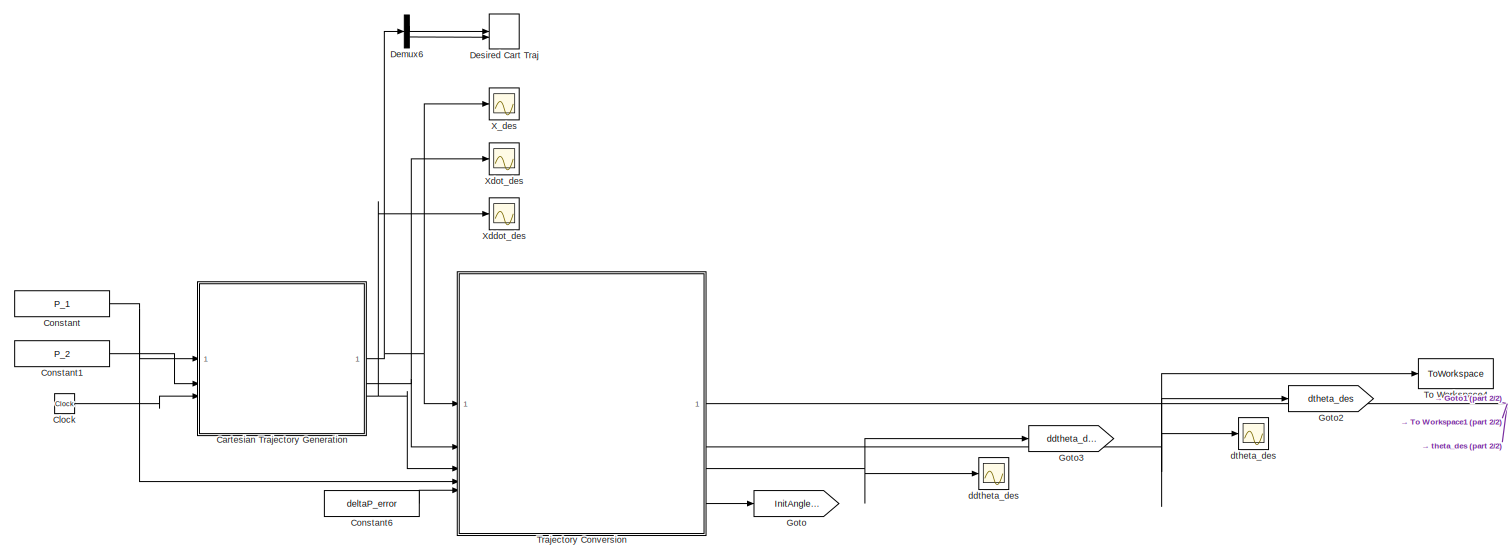
[diagram: root canvas - part 1/2, left side, full height]
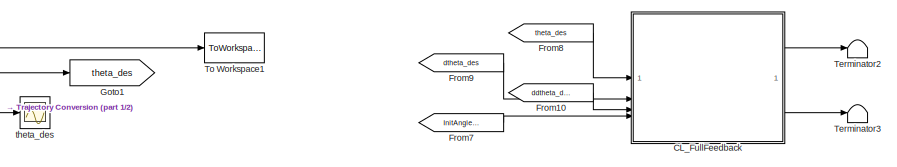
[diagram: root canvas - part 2/2, middle right region]
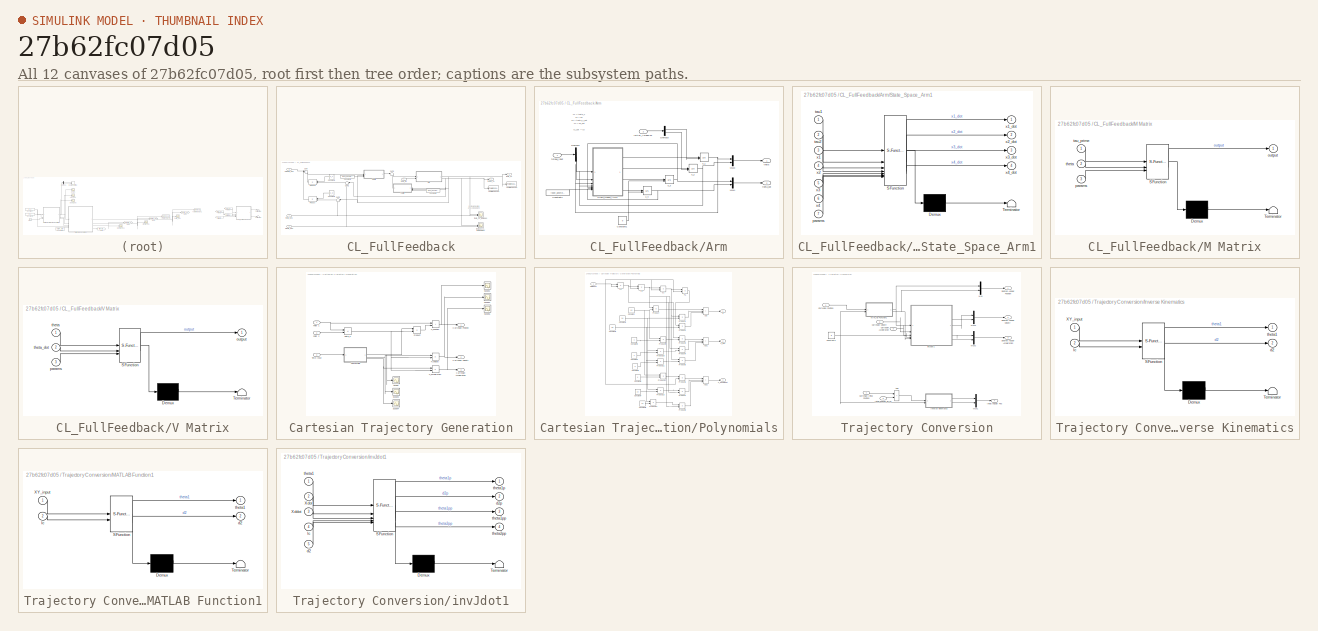
[diagram: thumbnail index - all 12 canvases of the model, root first then tree order]
MODEL slx_27b62fc07d05
KIND model
CONFIG AbsTol = auto
CONFIG EnableMultiTasking = off
CONFIG FixedStep = auto
CONFIG MaxStep = auto
CONFIG MinStep = auto
CONFIG RelTol = 1e-3
CONFIG SampleTimeConstraint = Unconstrained
CONFIG SolverName = ode45
CONFIG StartTime = 0.0
CONFIG StopTime = t_f
BLOCK [SubSystem] CL_FullFeedback
BLOCK [SubSystem] CL_FullFeedback/Arm
BLOCK [Constant] CL_FullFeedback/Arm/Constant1
  Value = 0
BLOCK [Constant] CL_FullFeedback/Arm/Constant2
  Value = robot_geometry
BLOCK [Demux] CL_FullFeedback/Arm/Demux2
  Outputs = 2
BLOCK [Demux] CL_FullFeedback/Arm/Demux3
  Outputs = 2
BLOCK [Mux] CL_FullFeedback/Arm/Mux3
  DisplayOption = bar
  Inputs = 2
BLOCK [Mux] CL_FullFeedback/Arm/Mux4
  DisplayOption = bar
  Inputs = 2
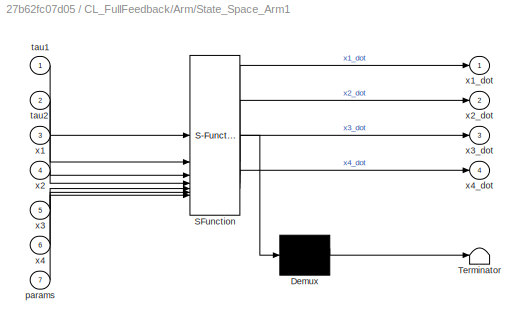
BLOCK [SubSystem] CL_FullFeedback/Arm/State_Space_Arm1
  ErrorFcn = Stateflow.Translate.translate
  PermitHierarchicalResolution = ExplicitOnly
  SFBlockType = MATLAB Function
  TreatAsAtomicUnit = on
BLOCK [Demux] CL_FullFeedback/Arm/State_Space_Arm1/ Demux 
  Outputs = 1
BLOCK [S-Function] CL_FullFeedback/Arm/State_Space_Arm1/ SFunction 
  EnableBusSupport = on
  FunctionName = sf_sfun
  PortCounts = [7 5]
  SFcnIsStateOwnerBlock = off
  SFunctionDeploymentMode = off
  Tag = Stateflow S-Function 4
BLOCK [Terminator] CL_FullFeedback/Arm/State_Space_Arm1/ Terminator 
BLOCK [Inport] CL_FullFeedback/Arm/State_Space_Arm1/params
  Port = 7
BLOCK [Inport] CL_FullFeedback/Arm/State_Space_Arm1/tau1
BLOCK [Inport] CL_FullFeedback/Arm/State_Space_Arm1/tau2
  Port = 2
BLOCK [Inport] CL_FullFeedback/Arm/State_Space_Arm1/x1
  Port = 3
BLOCK [Outport] CL_FullFeedback/Arm/State_Space_Arm1/x1_dot
BLOCK [Inport] CL_FullFeedback/Arm/State_Space_Arm1/x2
  Port = 4
BLOCK [Outport] CL_FullFeedback/Arm/State_Space_Arm1/x2_dot
  Port = 2
BLOCK [Inport] CL_FullFeedback/Arm/State_Space_Arm1/x3
  Port = 5
BLOCK [Outport] CL_FullFeedback/Arm/State_Space_Arm1/x3_dot
  Port = 3
BLOCK [Inport] CL_FullFeedback/Arm/State_Space_Arm1/x4
  Port = 6
BLOCK [Outport] CL_FullFeedback/Arm/State_Space_Arm1/x4_dot
  Port = 4
BLOCK [Inport] CL_FullFeedback/Arm/initial_AnlgePos
  Port = 2
  PortDimensions = [2 1]
BLOCK [Outport] CL_FullFeedback/Arm/theta
  PortDimensions = [2 1]
BLOCK [Outport] CL_FullFeedback/Arm/theta_dot
  Port = 2
  PortDimensions = [2 1]
BLOCK [Inport] CL_FullFeedback/Arm/torque_input
  PortDimensions = [2 1]
BLOCK [Integrator] CL_FullFeedback/Arm/x_1
  InitialConditionSource = external
BLOCK [Integrator] CL_FullFeedback/Arm/x_2
  InitialConditionSource = external
BLOCK [Integrator] CL_FullFeedback/Arm/x_3
  InitialConditionSource = external
BLOCK [Integrator] CL_FullFeedback/Arm/x_4
  InitialConditionSource = external
BLOCK [Constant] CL_FullFeedback/Constant2
  Value = k_p
BLOCK [Constant] CL_FullFeedback/Constant3
  Value = k_v
BLOCK [Constant] CL_FullFeedback/Constant5
  Value = robot_geometry
BLOCK [Constant] CL_FullFeedback/Constant6
  Value = robot_geometry
BLOCK [SubSystem] CL_FullFeedback/M Matrix
  ErrorFcn = Stateflow.Translate.translate
  PermitHierarchicalResolution = ExplicitOnly
  SFBlockType = MATLAB Function
  TreatAsAtomicUnit = on
BLOCK [Demux] CL_FullFeedback/M Matrix/ Demux 
  Outputs = 1
BLOCK [S-Function] CL_FullFeedback/M Matrix/ SFunction 
  EnableBusSupport = on
  FunctionName = sf_sfun
  PortCounts = [3 2]
  SFcnIsStateOwnerBlock = off
  SFunctionDeploymentMode = off
  Tag = Stateflow S-Function 9
BLOCK [Terminator] CL_FullFeedback/M Matrix/ Terminator 
BLOCK [Outport] CL_FullFeedback/M Matrix/output
BLOCK [Inport] CL_FullFeedback/M Matrix/params
  Port = 3
BLOCK [Inport] CL_FullFeedback/M Matrix/tau_prime
BLOCK [Inport] CL_FullFeedback/M Matrix/theta
  Port = 2
BLOCK [Product] CL_FullFeedback/Product
  Multiplication = Matrix(*)
BLOCK [Product] CL_FullFeedback/Product1
  Multiplication = Matrix(*)
BLOCK [Sum] CL_FullFeedback/Sum
  Inputs = |+++
BLOCK [Sum] CL_FullFeedback/Sum1
  Inputs = |-+
BLOCK [Sum] CL_FullFeedback/Sum2
  Inputs = |-+
BLOCK [Sum] CL_FullFeedback/Sum3
  InputSameDT = on
  Inputs = |++
BLOCK [ToWorkspace] CL_FullFeedback/To Workspace2
  FixptAsFi = on
  MaxDataPoints = inf
  SampleTime = -1
  SaveFormat = Timeseries
  VariableName = thetaCL
BLOCK [ToWorkspace] CL_FullFeedback/To Workspace3
  FixptAsFi = on
  MaxDataPoints = inf
  SampleTime = -1
  SaveFormat = Timeseries
  VariableName = theta_dotCL
BLOCK [SubSystem] CL_FullFeedback/V Matrix
  ErrorFcn = Stateflow.Translate.translate
  PermitHierarchicalResolution = ExplicitOnly
  SFBlockType = MATLAB Function
  TreatAsAtomicUnit = on
BLOCK [Demux] CL_FullFeedback/V Matrix/ Demux 
  Outputs = 1
BLOCK [S-Function] CL_FullFeedback/V Matrix/ SFunction 
  EnableBusSupport = on
  FunctionName = sf_sfun
  PortCounts = [3 2]
  SFcnIsStateOwnerBlock = off
  SFunctionDeploymentMode = off
  Tag = Stateflow S-Function 10
BLOCK [Terminator] CL_FullFeedback/V Matrix/ Terminator 
BLOCK [Outport] CL_FullFeedback/V Matrix/output
BLOCK [Inport] CL_FullFeedback/V Matrix/params
  Port = 3
BLOCK [Inport] CL_FullFeedback/V Matrix/theta
BLOCK [Inport] CL_FullFeedback/V Matrix/theta_dot
  Port = 2
BLOCK [Inport] CL_FullFeedback/ddtheta_des
  Port = 3
  PortDimensions = [2 1]
BLOCK [Inport] CL_FullFeedback/dtheta_des
  Port = 2
  PortDimensions = [2 1]
BLOCK [Outport] CL_FullFeedback/theta_CL
  PortDimensions = [2 1]
BLOCK [Inport] CL_FullFeedback/theta_des
  PortDimensions = [2 1]
BLOCK [Inport] CL_FullFeedback/theta_init
  Port = 4
  PortDimensions = [2 1]
BLOCK [Scope] CL_FullFeedback/theta_vs_thetades
  Floating = off
  NumInputPorts = 2
  ScopeSpecificationString = Simulink.scopes.TimeScopeBlockCfg('CurrentConfiguration', extmgr.ConfigurationSet(extmgr.Configuration('Core','General UI',true),extmgr.Configuration('Core','Source UI',true),extmgr.Configuration('Sources','WiredSimulink',true,'DataLoggingVariableName','ScopeData5','DataLoggingSaveFormat','StructureWithTime','DataLoggingDecimation','1','DataLoggingDecimateData',true),extmgr.Configuration('Visuals'...<+1726ch>
BLOCK [Outport] CL_FullFeedback/thetad_CL
  Port = 2
  PortDimensions = [2 1]
BLOCK [Scope] CL_FullFeedback/thetadot_vs_thetadotdes
  Floating = off
  NumInputPorts = 2
  ScopeSpecificationString = Simulink.scopes.TimeScopeBlockCfg('CurrentConfiguration', extmgr.ConfigurationSet(extmgr.Configuration('Core','General UI',true),extmgr.Configuration('Core','Source UI',true),extmgr.Configuration('Sources','WiredSimulink',true,'DataLoggingVariableName','ScopeData6','DataLoggingSaveFormat','StructureWithTime','DataLoggingDecimation','1','DataLoggingDecimateData',true),extmgr.Configuration('Visuals'...<+1758ch>
BLOCK [SubSystem] Cartesian Trajectory Generation
BLOCK [Outport] Cartesian Trajectory Generation/Cartesian Acceleration
  Port = 3
BLOCK [Outport] Cartesian Trajectory Generation/Cartesian Position
BLOCK [Outport] Cartesian Trajectory Generation/Cartesian Velocity
  Port = 2
BLOCK [Product] Cartesian Trajectory Generation/P_acceleration
BLOCK [Sum] Cartesian Trajectory Generation/P_position
  IconShape = rectangular
BLOCK [Product] Cartesian Trajectory Generation/P_velocity
BLOCK [Inport] Cartesian Trajectory Generation/Point 1
  PortDimensions = [2 1]
BLOCK [Inport] Cartesian Trajectory Generation/Point 2
  Port = 2
  PortDimensions = [2 1]
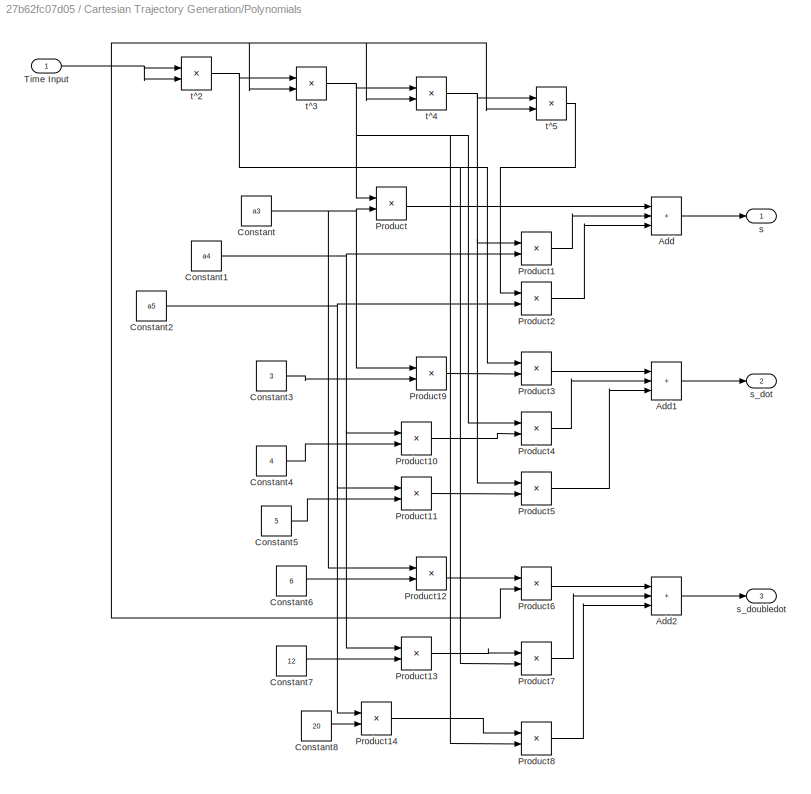
BLOCK [SubSystem] Cartesian Trajectory Generation/Polynomials
BLOCK [Sum] Cartesian Trajectory Generation/Polynomials/Add
  IconShape = rectangular
  Inputs = +++
BLOCK [Sum] Cartesian Trajectory Generation/Polynomials/Add1
  IconShape = rectangular
  Inputs = +++
BLOCK [Sum] Cartesian Trajectory Generation/Polynomials/Add2
  IconShape = rectangular
  Inputs = +++
BLOCK [Constant] Cartesian Trajectory Generation/Polynomials/Constant
  Value = a3
BLOCK [Constant] Cartesian Trajectory Generation/Polynomials/Constant1
  Value = a4
BLOCK [Constant] Cartesian Trajectory Generation/Polynomials/Constant2
  Value = a5
BLOCK [Constant] Cartesian Trajectory Generation/Polynomials/Constant3
  Value = 3
BLOCK [Constant] Cartesian Trajectory Generation/Polynomials/Constant4
  Value = 4
BLOCK [Constant] Cartesian Trajectory Generation/Polynomials/Constant5
  Value = 5
BLOCK [Constant] Cartesian Trajectory Generation/Polynomials/Constant6
  Value = 6
BLOCK [Constant] Cartesian Trajectory Generation/Polynomials/Constant7
  Value = 12
BLOCK [Constant] Cartesian Trajectory Generation/Polynomials/Constant8
  Value = 20
BLOCK [Product] Cartesian Trajectory Generation/Polynomials/Product
BLOCK [Product] Cartesian Trajectory Generation/Polynomials/Product1
BLOCK [Product] Cartesian Trajectory Generation/Polynomials/Product10
BLOCK [Product] Cartesian Trajectory Generation/Polynomials/Product11
BLOCK [Product] Cartesian Trajectory Generation/Polynomials/Product12
BLOCK [Product] Cartesian Trajectory Generation/Polynomials/Product13
BLOCK [Product] Cartesian Trajectory Generation/Polynomials/Product14
BLOCK [Product] Cartesian Trajectory Generation/Polynomials/Product2
BLOCK [Product] Cartesian Trajectory Generation/Polynomials/Product3
BLOCK [Product] Cartesian Trajectory Generation/Polynomials/Product4
BLOCK [Product] Cartesian Trajectory Generation/Polynomials/Product5
BLOCK [Product] Cartesian Trajectory Generation/Polynomials/Product6
BLOCK [Product] Cartesian Trajectory Generation/Polynomials/Product7
BLOCK [Product] Cartesian Trajectory Generation/Polynomials/Product8
BLOCK [Product] Cartesian Trajectory Generation/Polynomials/Product9
BLOCK [Inport] Cartesian Trajectory Generation/Polynomials/Time Input
BLOCK [Outport] Cartesian Trajectory Generation/Polynomials/s
BLOCK [Outport] Cartesian Trajectory Generation/Polynomials/s_dot
  Port = 2
BLOCK [Outport] Cartesian Trajectory Generation/Polynomials/s_doubledot
  Port = 3
BLOCK [Product] Cartesian Trajectory Generation/Polynomials/t^2
BLOCK [Product] Cartesian Trajectory Generation/Polynomials/t^3
BLOCK [Product] Cartesian Trajectory Generation/Polynomials/t^4
BLOCK [Product] Cartesian Trajectory Generation/Polynomials/t^5
BLOCK [Product] Cartesian Trajectory Generation/Product
BLOCK [Scope] Cartesian Trajectory Generation/Scope
  Floating = off
  NumInputPorts = 1
  ScopeSpecificationString = Simulink.scopes.TimeScopeBlockCfg('CurrentConfiguration', extmgr.ConfigurationSet(extmgr.Configuration('Core','General UI',true),extmgr.Configuration('Core','Source UI',true),extmgr.Configuration('Sources','WiredSimulink',true,'DataLoggingLimitDataPoints',true,'DataLoggingSaveFormat','Array','DataLoggingDecimation','1','DataLoggingDecimateData',true),extmgr.Configuration('Visuals','Time Domain',tr...<+876ch>
BLOCK [Scope] Cartesian Trajectory Generation/Scope1
  Floating = off
  NumInputPorts = 1
  ScopeSpecificationString = C++SS(StrPVP('Location','[188, 365, 512, 604]'),StrPVP('Open','off'),MxPVP('AxesTitles',54,'struct(''axes1'',''%<SignalLabel>'')'),StrPVP('ShowLegends','off'),StrPVP('ScrollMode','off'),StrPVP('LimitDataPoints','on'),StrPVP('DataFormat','Array'),StrPVP('Decimation','1'),StrPVP('BlockParamSampleInput','off'))
BLOCK [Scope] Cartesian Trajectory Generation/Scope2
  Floating = off
  NumInputPorts = 1
  ScopeSpecificationString = Simulink.scopes.TimeScopeBlockCfg('CurrentConfiguration', extmgr.ConfigurationSet(extmgr.Configuration('Core','General UI',true),extmgr.Configuration('Core','Source UI',true),extmgr.Configuration('Sources','WiredSimulink',true,'DataLoggingLimitDataPoints',true,'DataLoggingSaveFormat','Array','DataLoggingDecimation','1','DataLoggingDecimateData',true,'DataLoggingVariableName','ScopeData3'),extmgr.C...<+899ch>
BLOCK [Scope] Cartesian Trajectory Generation/Scope3
  Floating = off
  NumInputPorts = 1
  ScopeSpecificationString = Simulink.scopes.TimeScopeBlockCfg('CurrentConfiguration', extmgr.ConfigurationSet(extmgr.Configuration('Core','General UI',true),extmgr.Configuration('Core','Source UI',true),extmgr.Configuration('Sources','WiredSimulink',true,'DataLoggingLimitDataPoints',true,'DataLoggingSaveFormat','Array','DataLoggingDecimation','1','DataLoggingDecimateData',true,'DataLoggingVariableName','ScopeData1'),extmgr.C...<+899ch>
BLOCK [Scope] Cartesian Trajectory Generation/Scope4
  Floating = off
  NumInputPorts = 1
  ScopeSpecificationString = Simulink.scopes.TimeScopeBlockCfg('CurrentConfiguration', extmgr.ConfigurationSet(extmgr.Configuration('Core','General UI',true),extmgr.Configuration('Core','Source UI',true),extmgr.Configuration('Sources','WiredSimulink',true,'DataLoggingLimitDataPoints',true,'DataLoggingSaveFormat','Array','DataLoggingDecimation','1','DataLoggingDecimateData',true,'DataLoggingVariableName','ScopeData2'),extmgr.C...<+899ch>
BLOCK [Scope] Cartesian Trajectory Generation/Scope5
  Floating = off
  NumInputPorts = 1
  ScopeSpecificationString = Simulink.scopes.TimeScopeBlockCfg('CurrentConfiguration', extmgr.ConfigurationSet(extmgr.Configuration('Core','General UI',true),extmgr.Configuration('Core','Source UI',true),extmgr.Configuration('Sources','WiredSimulink',true,'DataLoggingLimitDataPoints',true,'DataLoggingSaveFormat','Array','DataLoggingDecimation','1','DataLoggingDecimateData',true,'DataLoggingVariableName','ScopeData4'),extmgr.C...<+1696ch>
BLOCK [Inport] Cartesian Trajectory Generation/Time Input
  Port = 3
BLOCK [Sum] Cartesian Trajectory Generation/delta_P
  IconShape = rectangular
  Inputs = -+
BLOCK [Clock] Clock
BLOCK [Constant] Constant
  Value = P_1
  VectorParams1D = off
BLOCK [Constant] Constant1
  Value = P_2
  VectorParams1D = off
BLOCK [Constant] Constant6
  Value = deltaP_error
  VectorParams1D = off
BLOCK [Demux] Demux6
  Outputs = 2
BLOCK [Record] Desired Cart Traj
  CompatibilityTag = XY
  FileSettingsInternal = {"entries":[{"content":{"excelSettings":{"content":{},"type":"Streamout.ExcelSettings"}},"type":"Streamout.FileSettingStorage","uuid":"575ce4a4-5469-47b1-a867-954e626e9ef8"}],"packageUris":["http://schema.mathworks.com/mf0/streamout_blocks/R2020a"],"version":"1.0"}
  Layout = [1 1]
  SignalsInternal = {"entries":[{"content":{"signals":[{"content":{"blockPath":["ME655_HW02/Desired Cart Traj"],"dimensions":[1,1],"domain":"ME655_HW02/Desired Cart Traj","lineColor":"#a2142f","plots":[1],"port":1,"sid":[""],"signalID":313,"signalName":"Demux6:1"},"type":"RecordBlkView.Signal","uuid":"13b7ad26-6d5e-4f79-b7c3-48515e24de1a"},{"content":{"blockPath":["ME655_HW02/Desired Cart Traj"],"dimensions":[1,1],"d...<+385ch>
  VisualizationBindings = {"xyplotplugin":{"info":[{"series":[{"bindingParametersList":[{"parameter":"X-Axis","signalID":313,"signalName":"Demux6:1"},{"parameter":"Y-Axis","signalID":317,"signalName":"Demux6:2"}],"seriesID":13225}],"subplotID":1}]}}
  st = -1
BLOCK [From] From10
  GotoTag = ddtheta_des
BLOCK [From] From7
  GotoTag = InitAnglePose
BLOCK [From] From8
  GotoTag = theta_des
BLOCK [From] From9
  GotoTag = dtheta_des
BLOCK [Goto] Goto
  GotoTag = InitAnglePose
BLOCK [Goto] Goto1
  GotoTag = theta_des
BLOCK [Goto] Goto2
  GotoTag = dtheta_des
BLOCK [Goto] Goto3
  GotoTag = ddtheta_des
BLOCK [Terminator] Terminator2
BLOCK [Terminator] Terminator3
BLOCK [ToWorkspace] To Workspace1
  FixptAsFi = on
  MaxDataPoints = inf
  SampleTime = -1
  SaveFormat = Timeseries
  VariableName = theta_des
BLOCK [ToWorkspace] To Workspace4
  FixptAsFi = on
  MaxDataPoints = inf
  SampleTime = -1
  SaveFormat = Timeseries
  VariableName = theta_dot_des1
BLOCK [SubSystem] Trajectory Conversion
BLOCK [Sum] Trajectory Conversion/Add
  IconShape = rectangular
BLOCK [Inport] Trajectory Conversion/Cartesian Acceleration
  Port = 3
  PortDimensions = [2 1]
BLOCK [Inport] Trajectory Conversion/Cartesian Initial Position
  Port = 4
  PortDimensions = [2 1]
BLOCK [Inport] Trajectory Conversion/Cartesian Position
  PortDimensions = [2 1]
BLOCK [Inport] Trajectory Conversion/Cartesian Velocity
  Port = 2
  PortDimensions = [2 1]
BLOCK [Constant] Trajectory Conversion/Constant2
  Value = lc
BLOCK [Outport] Trajectory Conversion/Desired Angular Acceleration
  Port = 3
  PortDimensions = [2 1]
BLOCK [Outport] Trajectory Conversion/Desired Angular Position
  PortDimensions = [2 1]
BLOCK [Outport] Trajectory Conversion/Desired Angular Velocity
  Port = 2
  PortDimensions = [2 1]
BLOCK [Outport] Trajectory Conversion/Initial Angular Pos
  Port = 4
  PortDimensions = [2 1]
BLOCK [Inport] Trajectory Conversion/Initial Position Error
  Port = 5
  PortDimensions = [2 1]
BLOCK [SubSystem] Trajectory Conversion/Inverse Kinematics
  ErrorFcn = Stateflow.Translate.translate
  PermitHierarchicalResolution = ExplicitOnly
  SFBlockType = MATLAB Function
  TreatAsAtomicUnit = on
BLOCK [Demux] Trajectory Conversion/Inverse Kinematics/ Demux 
  Outputs = 1
BLOCK [S-Function] Trajectory Conversion/Inverse Kinematics/ SFunction 
  EnableBusSupport = on
  FunctionName = sf_sfun
  PortCounts = [2 3]
  SFcnIsStateOwnerBlock = off
  SFunctionDeploymentMode = off
  Tag = Stateflow S-Function 12
BLOCK [Terminator] Trajectory Conversion/Inverse Kinematics/ Terminator 
BLOCK [Inport] Trajectory Conversion/Inverse Kinematics/XY_input
BLOCK [Outport] Trajectory Conversion/Inverse Kinematics/d2
  Port = 2
BLOCK [Inport] Trajectory Conversion/Inverse Kinematics/lc
  Port = 2
BLOCK [Outport] Trajectory Conversion/Inverse Kinematics/theta1
BLOCK [SubSystem] Trajectory Conversion/MATLAB Function1
  ErrorFcn = Stateflow.Translate.translate
  PermitHierarchicalResolution = ExplicitOnly
  SFBlockType = MATLAB Function
  TreatAsAtomicUnit = on
BLOCK [Demux] Trajectory Conversion/MATLAB Function1/ Demux 
  Outputs = 1
BLOCK [S-Function] Trajectory Conversion/MATLAB Function1/ SFunction 
  EnableBusSupport = on
  FunctionName = sf_sfun
  PortCounts = [2 3]
  SFcnIsStateOwnerBlock = off
  SFunctionDeploymentMode = off
  Tag = Stateflow S-Function 13
BLOCK [Terminator] Trajectory Conversion/MATLAB Function1/ Terminator 
BLOCK [Inport] Trajectory Conversion/MATLAB Function1/XY_input
BLOCK [Outport] Trajectory Conversion/MATLAB Function1/d2
  Port = 2
BLOCK [Inport] Trajectory Conversion/MATLAB Function1/lc
  Port = 2
BLOCK [Outport] Trajectory Conversion/MATLAB Function1/theta1
BLOCK [Mux] Trajectory Conversion/Mux
  DisplayOption = bar
  Inputs = 2
BLOCK [Mux] Trajectory Conversion/Mux1
  DisplayOption = bar
  Inputs = 2
BLOCK [Mux] Trajectory Conversion/Mux2
  DisplayOption = bar
  Inputs = 2
BLOCK [Mux] Trajectory Conversion/Mux3
  DisplayOption = bar
  Inputs = 2
BLOCK [SubSystem] Trajectory Conversion/invJdot1
  ErrorFcn = Stateflow.Translate.translate
  PermitHierarchicalResolution = ExplicitOnly
  SFBlockType = MATLAB Function
  TreatAsAtomicUnit = on
BLOCK [Demux] Trajectory Conversion/invJdot1/ Demux 
  Outputs = 1
BLOCK [S-Function] Trajectory Conversion/invJdot1/ SFunction 
  EnableBusSupport = on
  FunctionName = sf_sfun
  PortCounts = [5 5]
  SFcnIsStateOwnerBlock = off
  SFunctionDeploymentMode = off
  Tag = Stateflow S-Function 14
BLOCK [Terminator] Trajectory Conversion/invJdot1/ Terminator 
BLOCK [Inport] Trajectory Conversion/invJdot1/Xddot
  Port = 3
BLOCK [Inport] Trajectory Conversion/invJdot1/Xdot
  Port = 2
BLOCK [Inport] Trajectory Conversion/invJdot1/d2
  Port = 5
BLOCK [Outport] Trajectory Conversion/invJdot1/d2p
  Port = 2
BLOCK [Inport] Trajectory Conversion/invJdot1/lc
  Port = 4
BLOCK [Inport] Trajectory Conversion/invJdot1/theta1
BLOCK [Outport] Trajectory Conversion/invJdot1/theta1p
BLOCK [Outport] Trajectory Conversion/invJdot1/theta1pp
  Port = 3
BLOCK [Outport] Trajectory Conversion/invJdot1/theta2pp
  Port = 4
BLOCK [Scope] X_des
  Floating = off
  NumInputPorts = 1
  ScopeSpecificationString = Simulink.scopes.TimeScopeBlockCfg('CurrentConfiguration', extmgr.ConfigurationSet(extmgr.Configuration('Core','General UI',true),extmgr.Configuration('Core','Source UI',true),extmgr.Configuration('Sources','WiredSimulink',true,'DataLoggingVariableName','ScopeData2','DataLoggingLimitDataPoints',true,'DataLoggingSaveFormat','Array','DataLoggingDecimation','1','DataLoggingDecimateData',true),extmgr.C...<+1804ch>
BLOCK [Scope] Xddot_des
  Floating = off
  NumInputPorts = 1
  ScopeSpecificationString = Simulink.scopes.TimeScopeBlockCfg('CurrentConfiguration', extmgr.ConfigurationSet(extmgr.Configuration('Core','General UI',true),extmgr.Configuration('Core','Source UI',true),extmgr.Configuration('Sources','WiredSimulink',true,'DataLoggingVariableName','ScopeData5','DataLoggingLimitDataPoints',true,'DataLoggingSaveFormat','Array','DataLoggingDecimation','1','DataLoggingDecimateData',true),extmgr.C...<+1775ch>
BLOCK [Scope] Xdot_des
  Floating = off
  NumInputPorts = 1
  ScopeSpecificationString = Simulink.scopes.TimeScopeBlockCfg('CurrentConfiguration', extmgr.ConfigurationSet(extmgr.Configuration('Core','General UI',true),extmgr.Configuration('Core','Source UI',true),extmgr.Configuration('Sources','WiredSimulink',true,'DataLoggingVariableName','ScopeData4','DataLoggingLimitDataPoints',true,'DataLoggingSaveFormat','Array','DataLoggingDecimation','1','DataLoggingDecimateData',true),extmgr.C...<+1779ch>
BLOCK [Scope] ddtheta_des
  Floating = off
  NumInputPorts = 1
  ScopeSpecificationString = Simulink.scopes.TimeScopeBlockCfg('CurrentConfiguration', extmgr.ConfigurationSet(extmgr.Configuration('Core','General UI',true),extmgr.Configuration('Core','Source UI',true),extmgr.Configuration('Sources','WiredSimulink',true,'DataLoggingLimitDataPoints',true,'DataLoggingSaveFormat','Array','DataLoggingDecimation','1','DataLoggingDecimateData',true),extmgr.Configuration('Visuals','Time Domain',tr...<+1700ch>
BLOCK [Scope] dtheta_des
  Floating = off
  NumInputPorts = 1
  ScopeSpecificationString = Simulink.scopes.TimeScopeBlockCfg('CurrentConfiguration', extmgr.ConfigurationSet(extmgr.Configuration('Core','General UI',true),extmgr.Configuration('Core','Source UI',true),extmgr.Configuration('Sources','WiredSimulink',true,'DataLoggingLimitDataPoints',true,'DataLoggingSaveFormat','Array','DataLoggingDecimation','1','DataLoggingDecimateData',true),extmgr.Configuration('Visuals','Time Domain',tr...<+1677ch>
BLOCK [Scope] theta_des
  Floating = off
  NumInputPorts = 1
  ScopeSpecificationString = Simulink.scopes.TimeScopeBlockCfg('CurrentConfiguration', extmgr.ConfigurationSet(extmgr.Configuration('Core','General UI',true),extmgr.Configuration('Core','Source UI',true),extmgr.Configuration('Sources','WiredSimulink',true,'DataLoggingVariableName','ScopeData3','DataLoggingLimitDataPoints',true,'DataLoggingSaveFormat','Array','DataLoggingDecimation','1','DataLoggingDecimateData',true),extmgr.C...<+1759ch>
ANNOTATION CL_FullFeedback: Compare Desired and Actual Values
ANNOTATION CL_FullFeedback/Arm: x1 = theta_1 x2 = d2 x3 = theta_1_dot x4 = d2_dot x1_dot = x3 x2_dot = x4
NET CL_FullFeedback/Arm/Constant1:1 -> CL_FullFeedback/Arm/x_3:2, CL_FullFeedback/Arm/x_4:2
LINE CL_FullFeedback/Arm/Constant2:1 -> CL_FullFeedback/Arm/State_Space_Arm1:7
LINE CL_FullFeedback/Arm/Demux2:1 -> CL_FullFeedback/Arm/State_Space_Arm1:1
LINE CL_FullFeedback/Arm/Demux2:2 -> CL_FullFeedback/Arm/State_Space_Arm1:2
LINE CL_FullFeedback/Arm/Demux3:1 -> CL_FullFeedback/Arm/x_1:2
LINE CL_FullFeedback/Arm/Demux3:2 -> CL_FullFeedback/Arm/x_2:2
LINE CL_FullFeedback/Arm/Mux3:1 -> CL_FullFeedback/Arm/theta:1
LINE CL_FullFeedback/Arm/Mux4:1 -> CL_FullFeedback/Arm/theta_dot:1
LINE CL_FullFeedback/Arm/State_Space_Arm1:1 -> CL_FullFeedback/Arm/x_1:1
LINE CL_FullFeedback/Arm/State_Space_Arm1:2 -> CL_FullFeedback/Arm/x_2:1
LINE CL_FullFeedback/Arm/State_Space_Arm1:3 -> CL_FullFeedback/Arm/x_3:1
LINE CL_FullFeedback/Arm/State_Space_Arm1:4 -> CL_FullFeedback/Arm/x_4:1
LINE CL_FullFeedback/Arm/initial_AnlgePos:1 -> CL_FullFeedback/Arm/Demux3:1
LINE CL_FullFeedback/Arm/torque_input:1 -> CL_FullFeedback/Arm/Demux2:1
NET CL_FullFeedback/Arm/x_1:1 -> CL_FullFeedback/Arm/Mux3:1, CL_FullFeedback/Arm/State_Space_Arm1:3
NET CL_FullFeedback/Arm/x_2:1 -> CL_FullFeedback/Arm/Mux3:2, CL_FullFeedback/Arm/State_Space_Arm1:4
NET CL_FullFeedback/Arm/x_3:1 -> CL_FullFeedback/Arm/Mux4:1, CL_FullFeedback/Arm/State_Space_Arm1:5
NET CL_FullFeedback/Arm/x_4:1 -> CL_FullFeedback/Arm/Mux4:2, CL_FullFeedback/Arm/State_Space_Arm1:6
NET CL_FullFeedback/Arm:1 -> CL_FullFeedback/M Matrix:2, CL_FullFeedback/Sum2:1, CL_FullFeedback/To Workspace2:1, CL_FullFeedback/V Matrix:1, CL_FullFeedback/theta_CL:1, CL_FullFeedback/theta_vs_thetades:1
NET CL_FullFeedback/Arm:2 -> CL_FullFeedback/Sum1:1, CL_FullFeedback/To Workspace3:1, CL_FullFeedback/V Matrix:2, CL_FullFeedback/thetad_CL:1, CL_FullFeedback/thetadot_vs_thetadotdes:1
LINE CL_FullFeedback/Constant2:1 -> CL_FullFeedback/Product:1
LINE CL_FullFeedback/Constant3:1 -> CL_FullFeedback/Product1:1
LINE CL_FullFeedback/Constant5:1 -> CL_FullFeedback/M Matrix:3
LINE CL_FullFeedback/Constant6:1 -> CL_FullFeedback/V Matrix:3
LINE CL_FullFeedback/M Matrix:1 -> CL_FullFeedback/Sum3:1
LINE CL_FullFeedback/Product1:1 -> CL_FullFeedback/Sum:3
LINE CL_FullFeedback/Product:1 -> CL_FullFeedback/Sum:2
LINE CL_FullFeedback/Sum1:1 -> CL_FullFeedback/Product1:2
LINE CL_FullFeedback/Sum2:1 -> CL_FullFeedback/Product:2
LINE CL_FullFeedback/Sum3:1 -> CL_FullFeedback/Arm:1
LINE CL_FullFeedback/Sum:1 -> CL_FullFeedback/M Matrix:1
LINE CL_FullFeedback/V Matrix:1 -> CL_FullFeedback/Sum3:2
LINE CL_FullFeedback/ddtheta_des:1 -> CL_FullFeedback/Sum:1
NET CL_FullFeedback/dtheta_des:1 -> CL_FullFeedback/Sum1:2, CL_FullFeedback/thetadot_vs_thetadotdes:2
NET CL_FullFeedback/theta_des:1 -> CL_FullFeedback/Sum2:2, CL_FullFeedback/theta_vs_thetades:2
LINE CL_FullFeedback/theta_init:1 -> CL_FullFeedback/Arm:2
LINE CL_FullFeedback:1 -> Terminator2:1
LINE CL_FullFeedback:2 -> Terminator3:1
NET Cartesian Trajectory Generation/P_acceleration:1 -> Cartesian Trajectory Generation/Cartesian Acceleration:1, Cartesian Trajectory Generation/Scope5:1
NET Cartesian Trajectory Generation/P_position:1 -> Cartesian Trajectory Generation/Cartesian Position:1, Cartesian Trajectory Generation/Scope1:1
NET Cartesian Trajectory Generation/P_velocity:1 -> Cartesian Trajectory Generation/Cartesian Velocity:1, Cartesian Trajectory Generation/Scope2:1
NET Cartesian Trajectory Generation/Point 1:1 -> Cartesian Trajectory Generation/P_position:1, Cartesian Trajectory Generation/delta_P:1
LINE Cartesian Trajectory Generation/Point 2:1 -> Cartesian Trajectory Generation/delta_P:2
LINE Cartesian Trajectory Generation/Polynomials/Add1:1 -> Cartesian Trajectory Generation/Polynomials/s_dot:1
LINE Cartesian Trajectory Generation/Polynomials/Add2:1 -> Cartesian Trajectory Generation/Polynomials/s_doubledot:1
LINE Cartesian Trajectory Generation/Polynomials/Add:1 -> Cartesian Trajectory Generation/Polynomials/s:1
NET Cartesian Trajectory Generation/Polynomials/Constant1:1 -> Cartesian Trajectory Generation/Polynomials/Product10:1, Cartesian Trajectory Generation/Polynomials/Product13:1, Cartesian Trajectory Generation/Polynomials/Product1:2
NET Cartesian Trajectory Generation/Polynomials/Constant2:1 -> Cartesian Trajectory Generation/Polynomials/Product11:1, Cartesian Trajectory Generation/Polynomials/Product14:1, Cartesian Trajectory Generation/Polynomials/Product2:2
LINE Cartesian Trajectory Generation/Polynomials/Constant3:1 -> Cartesian Trajectory Generation/Polynomials/Product9:2
LINE Cartesian Trajectory Generation/Polynomials/Constant4:1 -> Cartesian Trajectory Generation/Polynomials/Product10:2
LINE Cartesian Trajectory Generation/Polynomials/Constant5:1 -> Cartesian Trajectory Generation/Polynomials/Product11:2
LINE Cartesian Trajectory Generation/Polynomials/Constant6:1 -> Cartesian Trajectory Generation/Polynomials/Product12:2
LINE Cartesian Trajectory Generation/Polynomials/Constant7:1 -> Cartesian Trajectory Generation/Polynomials/Product13:2
LINE Cartesian Trajectory Generation/Polynomials/Constant8:1 -> Cartesian Trajectory Generation/Polynomials/Product14:2
NET Cartesian Trajectory Generation/Polynomials/Constant:1 -> Cartesian Trajectory Generation/Polynomials/Product12:1, Cartesian Trajectory Generation/Polynomials/Product9:1, Cartesian Trajectory Generation/Polynomials/Product:2
LINE Cartesian Trajectory Generation/Polynomials/Product10:1 -> Cartesian Trajectory Generation/Polynomials/Product4:2
LINE Cartesian Trajectory Generation/Polynomials/Product11:1 -> Cartesian Trajectory Generation/Polynomials/Product5:2
LINE Cartesian Trajectory Generation/Polynomials/Product12:1 -> Cartesian Trajectory Generation/Polynomials/Product6:1
LINE Cartesian Trajectory Generation/Polynomials/Product13:1 -> Cartesian Trajectory Generation/Polynomials/Product7:1
LINE Cartesian Trajectory Generation/Polynomials/Product14:1 -> Cartesian Trajectory Generation/Polynomials/Product8:1
LINE Cartesian Trajectory Generation/Polynomials/Product1:1 -> Cartesian Trajectory Generation/Polynomials/Add:2
LINE Cartesian Trajectory Generation/Polynomials/Product2:1 -> Cartesian Trajectory Generation/Polynomials/Add:3
LINE Cartesian Trajectory Generation/Polynomials/Product3:1 -> Cartesian Trajectory Generation/Polynomials/Add1:1
LINE Cartesian Trajectory Generation/Polynomials/Product4:1 -> Cartesian Trajectory Generation/Polynomials/Add1:2
LINE Cartesian Trajectory Generation/Polynomials/Product5:1 -> Cartesian Trajectory Generation/Polynomials/Add1:3
LINE Cartesian Trajectory Generation/Polynomials/Product6:1 -> Cartesian Trajectory Generation/Polynomials/Add2:1
LINE Cartesian Trajectory Generation/Polynomials/Product7:1 -> Cartesian Trajectory Generation/Polynomials/Add2:2
LINE Cartesian Trajectory Generation/Polynomials/Product8:1 -> Cartesian Trajectory Generation/Polynomials/Add2:3
LINE Cartesian Trajectory Generation/Polynomials/Product9:1 -> Cartesian Trajectory Generation/Polynomials/Product3:2
LINE Cartesian Trajectory Generation/Polynomials/Product:1 -> Cartesian Trajectory Generation/Polynomials/Add:1
NET Cartesian Trajectory Generation/Polynomials/Time Input:1 -> Cartesian Trajectory Generation/Polynomials/Product6:2, Cartesian Trajectory Generation/Polynomials/t^2:1, Cartesian Trajectory Generation/Polynomials/t^2:2, Cartesian Trajectory Generation/Polynomials/t^3:2, Cartesian Trajectory Generation/Polynomials/t^4:2, Cartesian Trajectory Generation/Polynomials/t^5:2
NET Cartesian Trajectory Generation/Polynomials/t^2:1 -> Cartesian Trajectory Generation/Polynomials/Product3:1, Cartesian Trajectory Generation/Polynomials/Product7:2, Cartesian Trajectory Generation/Polynomials/t^3:1
NET Cartesian Trajectory Generation/Polynomials/t^3:1 -> Cartesian Trajectory Generation/Polynomials/Product4:1, Cartesian Trajectory Generation/Polynomials/Product8:2, Cartesian Trajectory Generation/Polynomials/Product:1, Cartesian Trajectory Generation/Polynomials/t^4:1
NET Cartesian Trajectory Generation/Polynomials/t^4:1 -> Cartesian Trajectory Generation/Polynomials/Product1:1, Cartesian Trajectory Generation/Polynomials/Product5:1, Cartesian Trajectory Generation/Polynomials/t^5:1
LINE Cartesian Trajectory Generation/Polynomials/t^5:1 -> Cartesian Trajectory Generation/Polynomials/Product2:1
NET Cartesian Trajectory Generation/Polynomials:1 -> Cartesian Trajectory Generation/Product:1, Cartesian Trajectory Generation/Scope:1
NET Cartesian Trajectory Generation/Polynomials:2 -> Cartesian Trajectory Generation/P_velocity:1, Cartesian Trajectory Generation/Scope3:1
NET Cartesian Trajectory Generation/Polynomials:3 -> Cartesian Trajectory Generation/P_acceleration:1, Cartesian Trajectory Generation/Scope4:1
LINE Cartesian Trajectory Generation/Product:1 -> Cartesian Trajectory Generation/P_position:2
LINE Cartesian Trajectory Generation/Time Input:1 -> Cartesian Trajectory Generation/Polynomials:1
NET Cartesian Trajectory Generation/delta_P:1 -> Cartesian Trajectory Generation/P_acceleration:2, Cartesian Trajectory Generation/P_velocity:2, Cartesian Trajectory Generation/Product:2
NET Cartesian Trajectory Generation:1 -> Demux6:1, Trajectory Conversion:1, X_des:1
NET Cartesian Trajectory Generation:2 -> Trajectory Conversion:2, Xdot_des:1
NET Cartesian Trajectory Generation:3 -> Trajectory Conversion:3, Xddot_des:1
LINE Clock:1 -> Cartesian Trajectory Generation:3
LINE Constant1:1 -> Cartesian Trajectory Generation:2
LINE Constant6:1 -> Trajectory Conversion:5
NET Constant:1 -> Cartesian Trajectory Generation:1, Trajectory Conversion:4
LINE Demux6:1 -> Desired Cart Traj:1
LINE Demux6:2 -> Desired Cart Traj:2
LINE From10:1 -> CL_FullFeedback:3
LINE From7:1 -> CL_FullFeedback:4
LINE From8:1 -> CL_FullFeedback:1
LINE From9:1 -> CL_FullFeedback:2
LINE Trajectory Conversion/Add:1 -> Trajectory Conversion/Inverse Kinematics:1
LINE Trajectory Conversion/Cartesian Acceleration:1 -> Trajectory Conversion/invJdot1:3
LINE Trajectory Conversion/Cartesian Initial Position:1 -> Trajectory Conversion/Add:1
LINE Trajectory Conversion/Cartesian Position:1 -> Trajectory Conversion/MATLAB Function1:1
LINE Trajectory Conversion/Cartesian Velocity:1 -> Trajectory Conversion/invJdot1:2
NET Trajectory Conversion/Constant2:1 -> Trajectory Conversion/Inverse Kinematics:2, Trajectory Conversion/MATLAB Function1:2, Trajectory Conversion/invJdot1:4
LINE Trajectory Conversion/Initial Position Error:1 -> Trajectory Conversion/Add:2
LINE Trajectory Conversion/Inverse Kinematics:1 -> Trajectory Conversion/Mux1:1
LINE Trajectory Conversion/Inverse Kinematics:2 -> Trajectory Conversion/Mux1:2
NET Trajectory Conversion/MATLAB Function1:1 -> Trajectory Conversion/Mux:1, Trajectory Conversion/invJdot1:1
NET Trajectory Conversion/MATLAB Function1:2 -> Trajectory Conversion/Mux:2, Trajectory Conversion/invJdot1:5
LINE Trajectory Conversion/Mux1:1 -> Trajectory Conversion/Initial Angular Pos:1
LINE Trajectory Conversion/Mux2:1 -> Trajectory Conversion/Desired Angular Acceleration:1
LINE Trajectory Conversion/Mux3:1 -> Trajectory Conversion/Desired Angular Velocity:1
LINE Trajectory Conversion/Mux:1 -> Trajectory Conversion/Desired Angular Position:1
LINE Trajectory Conversion/invJdot1:1 -> Trajectory Conversion/Mux3:1
LINE Trajectory Conversion/invJdot1:2 -> Trajectory Conversion/Mux3:2
LINE Trajectory Conversion/invJdot1:3 -> Trajectory Conversion/Mux2:1
LINE Trajectory Conversion/invJdot1:4 -> Trajectory Conversion/Mux2:2
NET Trajectory Conversion:1 -> Goto1:1, To Workspace1:1, theta_des:1
NET Trajectory Conversion:2 -> Goto2:1, To Workspace4:1, dtheta_des:1
NET Trajectory Conversion:3 -> Goto3:1, ddtheta_des:1
LINE Trajectory Conversion:4 -> Goto:1
note: NET lines group one-source signal fan-out (src -> all destinations, sorted); 1:1 wires keep LINE
CHART CL_FullFeedback/Arm/State_Space_Arm1 states=1 transitions=1
  STATE_LABEL 'eML_blk_kernel()'
  STATE_LABEL 'SCRIPT:\nfunction [x1_dot,x2_dot,x3_dot,x4_dot] = fun(tau1, tau2, x1,x2,x3,x4,params)\n\nm1=params(1);\nm2=params(2);\nl1=params(3);\n% m1 = 2;\n% m2 = 2;\n% l1 = 3;\n% l2 = 3;\n\nx1_dot=x3;\n\nx2_dot=x4;\n\nx3_dot = 3*tau1/(4*(m2*x2^2 + m1*l1^2)) - 3*x2*x4*m2*x3/(2*(m2*x2^2 + m1*l1^2));\n\nx4_dot = x2*x3^2 + tau2/m2;\n\n% x3_dot = 3*tau1/(4*(m2*x2^2 + m1*l1^2)) - 3*x2*x4*m2*x3/(2*(m2*x2^2 + m1*l1^2));\n% \n% x4_dot =...<+23ch>'
CHART CL_FullFeedback/M Matrix states=1 transitions=1
  STATE_LABEL 'eML_blk_kernel()'
  STATE_LABEL 'SCRIPT:\nfunction output = fcn(tau_prime, theta,params)\n\nm1=params(1);\nm2=params(2);\nl1=params(3);\n\n% m1 = 2;\n% m2 = 2;\n% l1 = 3;\n% l2 = 3;\n\nd2=theta(2);\nM_matrix=[[m1*l1^2 + (1/3)*m1*l1^2 + (1/3)*m2*d2^2 + m2*d2^2, 0];\n    [0, m2]];\n\n% M_matrix=[[m1*l1^2 + (1/3)*m1*l1^2 + (1/3)*m2*d2^2 + m2*d2^2, 0];\n%     [0, m2]];\n\noutput = M_matrix * tau_prime;'
CHART CL_FullFeedback/V Matrix states=1 transitions=1
  STATE_LABEL 'eML_blk_kernel()'
  STATE_LABEL 'SCRIPT:\nfunction output  = fcn(theta, theta_dot,params)\n\nm1=params(1);\nm2=params(2);\nl1=params(3);\n% m1 = 2;\n% m2 = 2;\n% l1 = 3;\n% l2 = 3;\n\nd2=theta(2);\ntheta1p=theta_dot(1); d2p=theta_dot(2);\n\noutput =[2*m2*d2*theta1p*d2p;\n    -m2*d2*theta1p^2];\n\n% output =[2*m2*d2*theta1p*d2p;\n%     -m2*d2*theta1p^2];'
CHART Trajectory Conversion/Inverse Kinematics states=1 transitions=1
  STATE_LABEL 'eML_blk_kernel()'
  STATE_LABEL 'SCRIPT:\nfunction [theta1, d2] = fcn(XY_input, lc)\n\ntheta1 = atan2(XY_input(2),XY_input(1));\nd2 = sqrt((XY_input(1))^2 + (XY_input(2))^2) - lc;\n\n'
CHART Trajectory Conversion/MATLAB Function1 states=1 transitions=1
  STATE_LABEL 'eML_blk_kernel()'
  STATE_LABEL 'SCRIPT:\nfunction [theta1, d2] = fcn(XY_input, lc)\n\ntheta1 = atan2(XY_input(2),XY_input(1));\nd2 = sqrt((XY_input(1))^2 + (XY_input(2))^2) - lc;\n\n'
CHART Trajectory Conversion/invJdot1 states=1 transitions=1
  STATE_LABEL 'eML_blk_kernel()'
  STATE_LABEL 'SCRIPT:\nfunction [theta1p,d2p,theta1pp,theta2pp]  = fcn(theta1,Xdot,Xddot,lc, d2)\n%#codegen\nthetap=invJ(theta1,d2,lc)*Xdot;\ntheta1p=thetap(1); d2p=thetap(2);\nthetapp=invJ(theta1,d2,lc)*Xddot+invJdot(theta1,d2,theta1p,d2p,lc)*Xdot;\ntheta1pp=thetapp(1);theta2pp=thetapp(2);\n\nend\n\nfunction out  = invJ(theta1,d2,lc)\n%#codegen\nout=[[(-sin(theta1))/(d2+lc), (cos(theta1))/(d2+lc)];\n    [cos(theta1), sin(t...<+231ch>'
CHART  states=0 transitions=0
CHART  states=0 transitions=0
CHART  states=0 transitions=0
CHART  states=0 transitions=0
CHART  states=0 transitions=0
CHART  states=0 transitions=0
